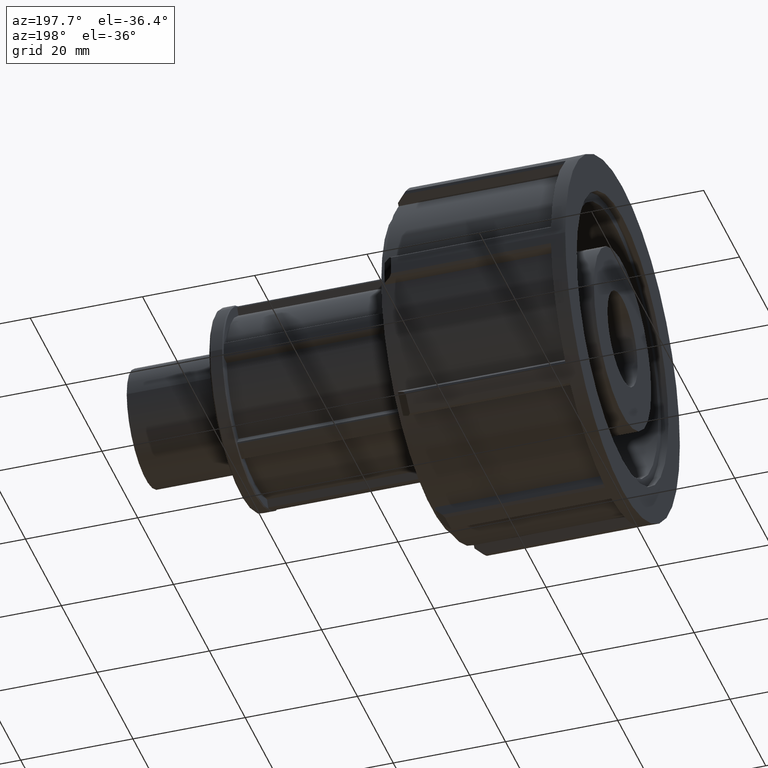
[diagram: clean part render]
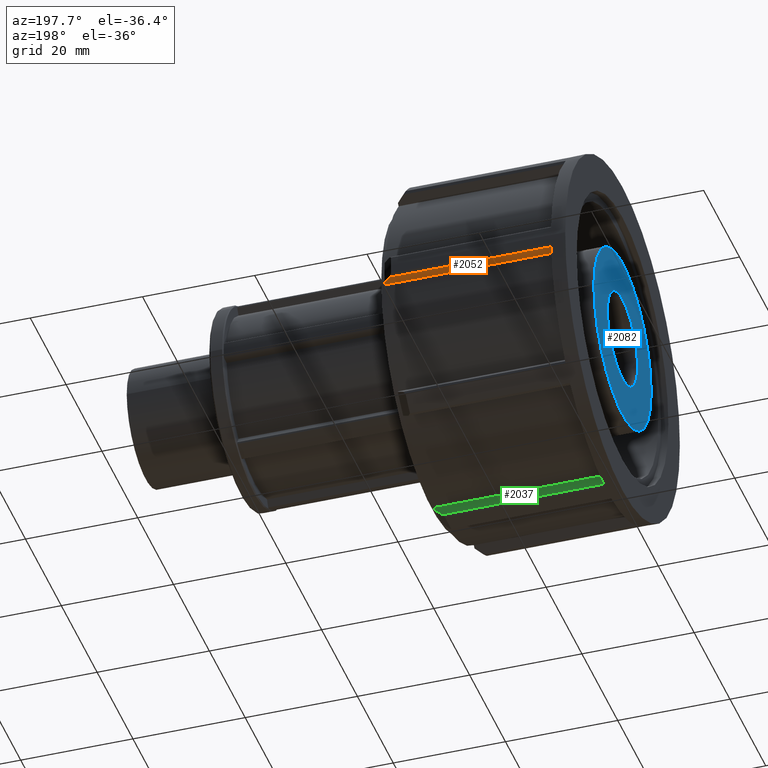
[diagram: same view with three faces highlighted in distinct colors, each labeled with its STEP entity id]
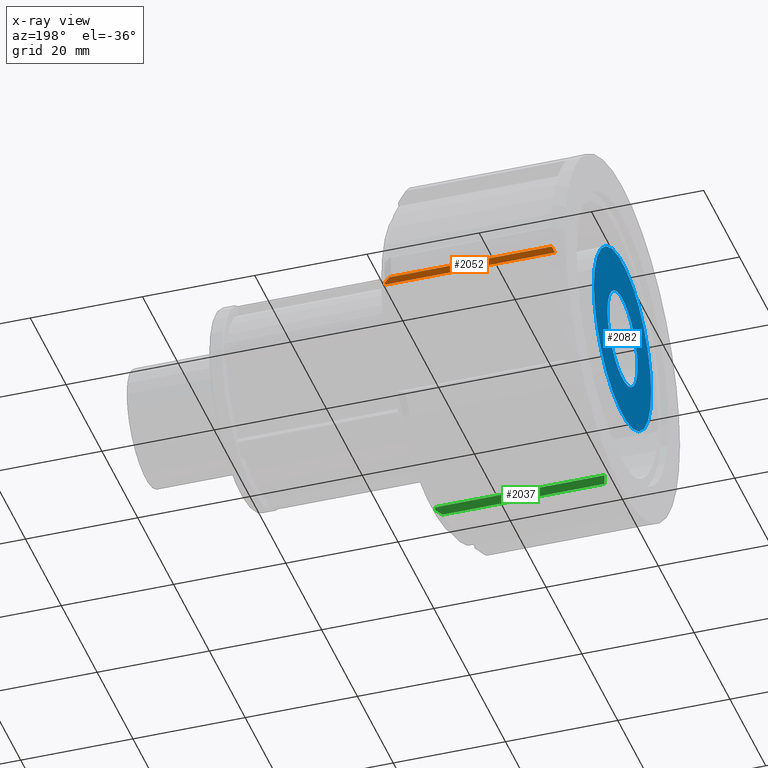
[diagram: x-ray of the same camera — body ghosted, the three highlighted faces saturated]
A machine part, auxiliary view with three faces highlighted in distinct colors.
The next image is the same camera in x-ray (body ghosted, the three faces saturated) — at least one of them is partly hidden behind the body in this view.
Their STEP definitions:

[orange] entity #2052 — the highlighted planar face has unit normal (0, 0, -1).
#22=(
BOUNDED_CURVE()
B_SPLINE_CURVE(2,(#3231,#3232,#3233),.UNSPECIFIED.,.F.,.F.)
B_SPLINE_CURVE_WITH_KNOTS((3,3),(0.,0.247470528820996),.UNSPECIFIED.)
CURVE()
GEOMETRIC_REPRESENTATION_ITEM()
RATIONAL_B_SPLINE_CURVE((1.,1.00349970361907,1.00659374737752))
REPRESENTATION_ITEM('')
);
#269=FACE_OUTER_BOUND('',#391,.T.);
#391=EDGE_LOOP('',(#1713,#1714,#1715,#1716,#1717));
#556=LINE('',#3218,#736);
#604=LINE('',#3418,#784);
#605=LINE('',#3420,#785);
#606=LINE('',#3421,#786);
#736=VECTOR('',#2597,28.9167885169777);
#784=VECTOR('',#2709,0.564976230840153);
#785=VECTOR('',#2710,30.175);
#786=VECTOR('',#2711,1.82608224784882);
#928=VERTEX_POINT('',#3213);
#929=VERTEX_POINT('',#3217);
#932=VERTEX_POINT('',#3229);
#980=VERTEX_POINT('',#3417);
#981=VERTEX_POINT('',#3419);
#1174=EDGE_CURVE('',#928,#929,#556,.T.);
#1179=EDGE_CURVE('',#932,#928,#22,.T.);
#1251=EDGE_CURVE('',#980,#932,#604,.T.);
#1252=EDGE_CURVE('',#981,#980,#605,.T.);
#1253=EDGE_CURVE('',#929,#981,#606,.T.);
#1713=ORIENTED_EDGE('',*,*,#1174,.F.);
#1714=ORIENTED_EDGE('',*,*,#1179,.F.);
#1715=ORIENTED_EDGE('',*,*,#1251,.F.);
#1716=ORIENTED_EDGE('',*,*,#1252,.F.);
#1717=ORIENTED_EDGE('',*,*,#1253,.F.);
#1955=PLANE('',#2223);
#2052=ADVANCED_FACE('',(#269),#1955,.T.);
#2223=AXIS2_PLACEMENT_3D('',#3416,#2707,#2708);
#2597=DIRECTION('',(-1.,0.,0.));
#2707=DIRECTION('center_axis',(0.,2.22044604925031E-16,-1.));
#2708=DIRECTION('ref_axis',(0.,-1.,-2.22044604925031E-16));
#2709=DIRECTION('',(0.,1.,2.22044604925031E-16));
#2710=DIRECTION('',(1.,0.,0.));
#2711=DIRECTION('',(0.,-1.,-2.22044604925031E-16));
#3213=CARTESIAN_POINT('',(31.4667885169776,31.5122150332084,-2.0955));
#3217=CARTESIAN_POINT('',(2.55,31.5122150332084,-2.0955));
#3218=CARTESIAN_POINT('',(1.275,31.5122150332084,-2.0955));
#3229=CARTESIAN_POINT('',(32.725,30.2511090161997,-2.0955));
#3231=CARTESIAN_POINT('Ctrl Pts',(32.725,30.2511090161997,-2.0955));
#3232=CARTESIAN_POINT('Ctrl Pts',(32.1087395683552,30.8688461978356,-2.0955));
#3233=CARTESIAN_POINT('Ctrl Pts',(31.4667885169776,31.5122150332084,-2.0955));
#3416=CARTESIAN_POINT('Origin',(32.725,31.9313150332084,-2.0955));
#3417=CARTESIAN_POINT('',(32.725,29.6861327853596,-2.0955));
#3418=CARTESIAN_POINT('',(32.725,28.0819244310286,-2.0955));
#3419=CARTESIAN_POINT('',(2.55,29.6861327853596,-2.0955));
#3420=CARTESIAN_POINT('',(17.6375,29.6861327853596,-2.0955));
#3421=CARTESIAN_POINT('',(2.55,30.8456575166042,-2.0955));

[blue] entity #2082 — the highlighted planar face has unit normal (-1, 0, 0).
#69=FACE_BOUND('',#426,.T.);
#156=CIRCLE('',#2274,8.382);
#157=CIRCLE('',#2276,16.);
#299=FACE_OUTER_BOUND('',#425,.T.);
#425=EDGE_LOOP('',(#1881));
#426=EDGE_LOOP('',(#1882));
#1004=VERTEX_POINT('',#3528);
#1005=VERTEX_POINT('',#3531);
#1301=EDGE_CURVE('',#1004,#1004,#156,.T.);
#1302=EDGE_CURVE('',#1005,#1005,#157,.T.);
#1881=ORIENTED_EDGE('',*,*,#1302,.F.);
#1882=ORIENTED_EDGE('',*,*,#1301,.T.);
#1973=PLANE('',#2275);
#2082=ADVANCED_FACE('',(#299,#69),#1973,.T.);
#2274=AXIS2_PLACEMENT_3D('',#3529,#2834,#2835);
#2275=AXIS2_PLACEMENT_3D('',#3530,#2836,#2837);
#2276=AXIS2_PLACEMENT_3D('',#3532,#2838,#2839);
#2834=DIRECTION('center_axis',(1.,0.,0.));
#2835=DIRECTION('ref_axis',(0.,0.,-1.));
#2836=DIRECTION('center_axis',(-1.,0.,0.));
#2837=DIRECTION('ref_axis',(0.,0.,1.));
#2838=DIRECTION('center_axis',(1.,0.,0.));
#2839=DIRECTION('ref_axis',(0.,0.,-1.));
#3528=CARTESIAN_POINT('',(0.,8.382,0.));
#3529=CARTESIAN_POINT('Origin',(0.,0.,0.));
#3530=CARTESIAN_POINT('Origin',(0.,16.,0.));
#3531=CARTESIAN_POINT('',(0.,16.,0.));
#3532=CARTESIAN_POINT('Origin',(0.,0.,0.));

[green] entity #2037 — the highlighted planar face has unit normal (0, 1, 0).
#29=(
BOUNDED_CURVE()
B_SPLINE_CURVE(2,(#3290,#3291,#3292),.UNSPECIFIED.,.F.,.F.)
B_SPLINE_CURVE_WITH_KNOTS((3,3),(4.02247870392548,4.26994923275654),
 .UNSPECIFIED.)
CURVE()
GEOMETRIC_REPRESENTATION_ITEM()
RATIONAL_B_SPLINE_CURVE((1.00659374737776,1.00349970361921,1.))
REPRESENTATION_ITEM('')
);
#254=FACE_OUTER_BOUND('',#376,.T.);
#376=EDGE_LOOP('',(#1641,#1642,#1643,#1644,#1645));
#573=LINE('',#3301,#753);
#574=LINE('',#3304,#754);
#575=LINE('',#3306,#755);
#576=LINE('',#3307,#756);
#753=VECTOR('',#2640,28.9167885169777);
#754=VECTOR('',#2643,1.82608224784882);
#755=VECTOR('',#2644,30.175);
#756=VECTOR('',#2645,0.564976230840153);
#946=VERTEX_POINT('',#3285);
#947=VERTEX_POINT('',#3289);
#949=VERTEX_POINT('',#3299);
#950=VERTEX_POINT('',#3303);
#951=VERTEX_POINT('',#3305);
#1201=EDGE_CURVE('',#946,#947,#29,.T.);
#1205=EDGE_CURVE('',#949,#946,#573,.T.);
#1206=EDGE_CURVE('',#950,#949,#574,.T.);
#1207=EDGE_CURVE('',#951,#950,#575,.T.);
#1208=EDGE_CURVE('',#947,#951,#576,.T.);
#1641=ORIENTED_EDGE('',*,*,#1205,.F.);
#1642=ORIENTED_EDGE('',*,*,#1206,.F.);
#1643=ORIENTED_EDGE('',*,*,#1207,.F.);
#1644=ORIENTED_EDGE('',*,*,#1208,.F.);
#1645=ORIENTED_EDGE('',*,*,#1201,.F.);
#1943=PLANE('',#2205);
#2037=ADVANCED_FACE('',(#254),#1943,.T.);
#2205=AXIS2_PLACEMENT_3D('',#3302,#2641,#2642);
#2640=DIRECTION('',(1.,0.,0.));
#2641=DIRECTION('center_axis',(0.,1.,2.22044604925031E-16));
#2642=DIRECTION('ref_axis',(0.,2.22044604925031E-16,-1.));
#2643=DIRECTION('',(0.,2.22044604925031E-16,-1.));
#2644=DIRECTION('',(-1.,0.,0.));
#2645=DIRECTION('',(0.,-2.22044604925031E-16,1.));
#3285=CARTESIAN_POINT('',(31.4667885169777,2.0955,-31.5122150332084));
#3289=CARTESIAN_POINT('',(32.725,2.0955,-30.2511090161997));
#3290=CARTESIAN_POINT('Ctrl Pts',(31.4667885169777,2.0955,-31.5122150332084));
#3291=CARTESIAN_POINT('Ctrl Pts',(32.108739568372,2.0955,-30.8688461978187));
#3292=CARTESIAN_POINT('Ctrl Pts',(32.725,2.0955,-30.2511090161997));
#3299=CARTESIAN_POINT('',(2.55,2.0955,-31.5122150332084));
#3301=CARTESIAN_POINT('',(1.275,2.0955,-31.5122150332084));
#3302=CARTESIAN_POINT('Origin',(32.725,2.0955,-28.0819244310286));
#3303=CARTESIAN_POINT('',(2.55,2.0955,-29.6861327853596));
#3304=CARTESIAN_POINT('',(2.55,2.09549999999999,-14.0409622155143));
#3305=CARTESIAN_POINT('',(32.725,2.0955,-29.6861327853596));
#3306=CARTESIAN_POINT('',(17.6375,2.0955,-29.6861327853596));
#3307=CARTESIAN_POINT('',(32.725,2.0955,-31.9313150332084));